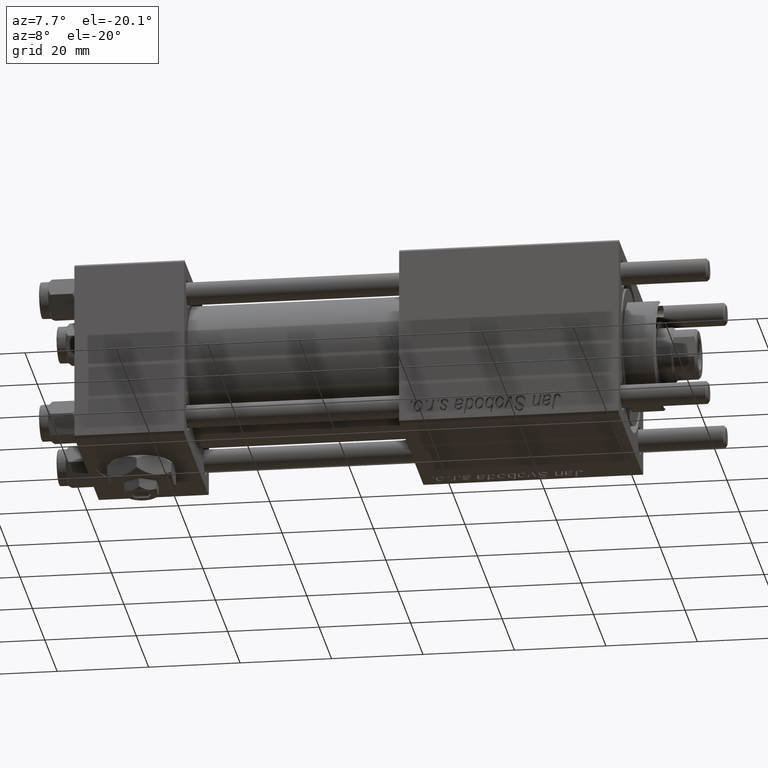
[diagram: clean part render]
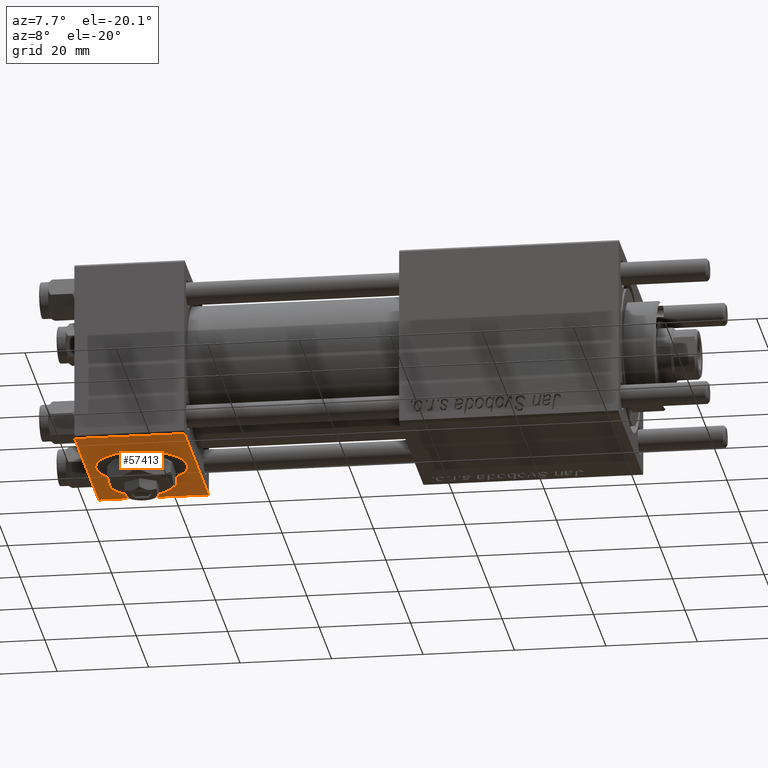
[diagram: same view with one face highlighted and labeled with its STEP entity id]
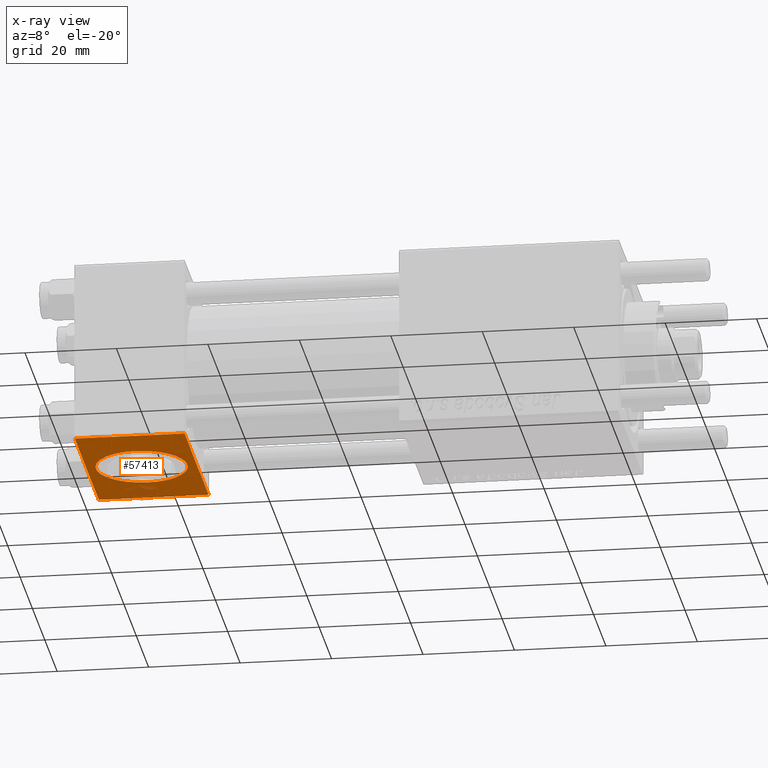
[diagram: x-ray of the same camera — body ghosted, the highlighted face saturated]
A machine part, auxiliary view. The second image highlights one B-rep face of the part: STEP entity #57413.
The next image is the same camera in x-ray: the body ghosted, the highlighted face saturated — about 8% of this face is hidden behind the body in this view.
In plain terms, the highlighted planar face has unit normal (0, -0, -1).
Its self-contained STEP definition (entity closure, byte-faithful):
#279 = LINE ( 'NONE', #18336, #21014 ) ;
#2126 = CIRCLE ( 'NONE', #14420, 10.00000000000000178 ) ;
#2407 = DIRECTION ( 'NONE',  ( 0.000000000000000000, 1.000000000000000000, -1.734723475976806848E-16 ) ) ;
#2464 = CARTESIAN_POINT ( 'NONE',  ( 12.00000000000000000, -4.939023110930437544E-15, -20.00000000000000355 ) ) ;
#3498 = CARTESIAN_POINT ( 'NONE',  ( 0.000000000000000000, 20.00000000000000000, -20.00000000000000711 ) ) ;
#5751 = ORIENTED_EDGE ( 'NONE', *, *, #27277, .T. ) ;
#9369 = CARTESIAN_POINT ( 'NONE',  ( 0.000000000000000000, -19.50000000000000711, -20.00000000000000000 ) ) ;
#9859 = VERTEX_POINT ( 'NONE', #31416 ) ;
#10712 = CIRCLE ( 'NONE', #27705, 10.00000000000000178 ) ;
#11012 = DIRECTION ( 'NONE',  ( 0.000000000000000000, -1.734723475976806848E-16, -1.000000000000000000 ) ) ;
#11309 = VERTEX_POINT ( 'NONE', #49565 ) ;
#12225 = VERTEX_POINT ( 'NONE', #47758 ) ;
#13592 = DIRECTION ( 'NONE',  ( 1.000000000000000000, 0.000000000000000000, 0.000000000000000000 ) ) ;
#14420 = AXIS2_PLACEMENT_3D ( 'NONE', #2464, #20808, #38883 ) ;
#14947 = EDGE_CURVE ( 'NONE', #18960, #9859, #26314, .T. ) ;
#15226 = DIRECTION ( 'NONE',  ( 0.000000000000000000, 1.000000000000000000, 0.000000000000000000 ) ) ;
#15274 = CARTESIAN_POINT ( 'NONE',  ( 0.000000000000000000, 19.50000000000000711, -20.00000000000000711 ) ) ;
#17658 = EDGE_CURVE ( 'NONE', #12225, #26765, #19078, .T. ) ;
#17704 = DIRECTION ( 'NONE',  ( 0.000000000000000000, -1.000000000000000000, 1.734723475976807094E-16 ) ) ;
#18336 = CARTESIAN_POINT ( 'NONE',  ( 24.00000000000000000, 19.50000000000000711, -20.00000000000000711 ) ) ;
#18960 = VERTEX_POINT ( 'NONE', #15274 ) ;
#19078 = LINE ( 'NONE', #27385, #43930 ) ;
#19893 = FACE_BOUND ( 'NONE', #38926, .T. ) ;
#20808 = DIRECTION ( 'NONE',  ( 0.000000000000000000, -1.734723475976806848E-16, -1.000000000000000000 ) ) ;
#21014 = VECTOR ( 'NONE', #13592, 1000.000000000000000 ) ;
#21390 = CARTESIAN_POINT ( 'NONE',  ( 24.00000000000000000, -19.50000000000000711, -20.00000000000000000 ) ) ;
#22742 = VERTEX_POINT ( 'NONE', #54744 ) ;
#23918 = EDGE_LOOP ( 'NONE', ( #27726, #5751, #32423, #58125 ) ) ;
#24083 = EDGE_CURVE ( 'NONE', #26765, #9859, #49961, .T. ) ;
#25878 = VECTOR ( 'NONE', #17704, 1000.000000000000000 ) ;
#26314 = LINE ( 'NONE', #3498, #25878 ) ;
#26765 = VERTEX_POINT ( 'NONE', #21390 ) ;
#27277 = EDGE_CURVE ( 'NONE', #18960, #12225, #279, .T. ) ;
#27385 = CARTESIAN_POINT ( 'NONE',  ( 24.00000000000000000, 20.00000000000000000, -20.00000000000000711 ) ) ;
#27438 = DIRECTION ( 'NONE',  ( -1.000000000000000000, 0.000000000000000000, 0.000000000000000000 ) ) ;
#27705 = AXIS2_PLACEMENT_3D ( 'NONE', #37743, #55822, #15226 ) ;
#27726 = ORIENTED_EDGE ( 'NONE', *, *, #14947, .F. ) ;
#30237 = PLANE ( 'NONE',  #50083 ) ;
#31416 = CARTESIAN_POINT ( 'NONE',  ( 0.000000000000000000, -19.50000000000000711, -20.00000000000000000 ) ) ;
#32167 = EDGE_CURVE ( 'NONE', #11309, #22742, #2126, .T. ) ;
#32423 = ORIENTED_EDGE ( 'NONE', *, *, #17658, .T. ) ;
#33036 = EDGE_CURVE ( 'NONE', #22742, #11309, #10712, .T. ) ;
#36267 = DIRECTION ( 'NONE',  ( 0.000000000000000000, -1.000000000000000000, 1.734723475976807094E-16 ) ) ;
#37743 = CARTESIAN_POINT ( 'NONE',  ( 12.00000000000000000, -4.939023110930437544E-15, -20.00000000000000355 ) ) ;
#38883 = DIRECTION ( 'NONE',  ( 0.000000000000000000, 1.000000000000000000, 0.000000000000000000 ) ) ;
#38926 = EDGE_LOOP ( 'NONE', ( #48236, #52757 ) ) ;
#42713 = FACE_OUTER_BOUND ( 'NONE', #23918, .T. ) ;
#43930 = VECTOR ( 'NONE', #36267, 1000.000000000000000 ) ;
#47758 = CARTESIAN_POINT ( 'NONE',  ( 24.00000000000000000, 19.50000000000000711, -20.00000000000000711 ) ) ;
#48236 = ORIENTED_EDGE ( 'NONE', *, *, #33036, .F. ) ;
#49565 = CARTESIAN_POINT ( 'NONE',  ( 12.00000000000000178, -10.00000000000000711, -20.00000000000000355 ) ) ;
#49961 = LINE ( 'NONE', #9369, #54981 ) ;
#50083 = AXIS2_PLACEMENT_3D ( 'NONE', #57217, #11012, #2407 ) ;
#52757 = ORIENTED_EDGE ( 'NONE', *, *, #32167, .F. ) ;
#54744 = CARTESIAN_POINT ( 'NONE',  ( 12.00000000000000000, 9.999999999999996447, -20.00000000000000355 ) ) ;
#54981 = VECTOR ( 'NONE', #27438, 1000.000000000000000 ) ;
#55822 = DIRECTION ( 'NONE',  ( 0.000000000000000000, -1.734723475976806848E-16, -1.000000000000000000 ) ) ;
#57217 = CARTESIAN_POINT ( 'NONE',  ( 24.00000000000000000, 20.00000000000000000, -20.00000000000000711 ) ) ;
#57413 = ADVANCED_FACE ( 'NONE', ( #19893, #42713 ), #30237, .T. ) ;
#58125 = ORIENTED_EDGE ( 'NONE', *, *, #24083, .T. ) ;